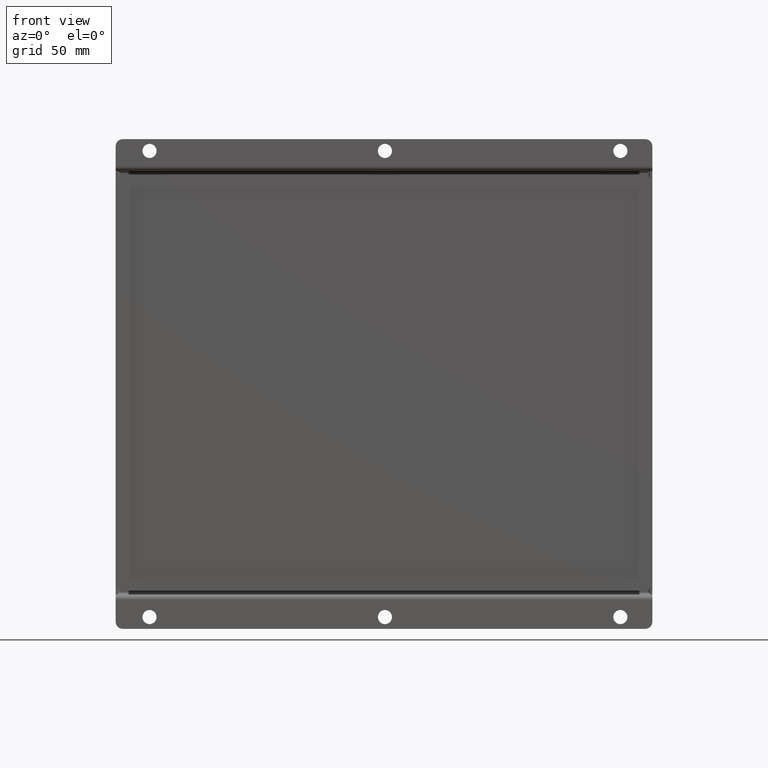
[diagram: clean part render]
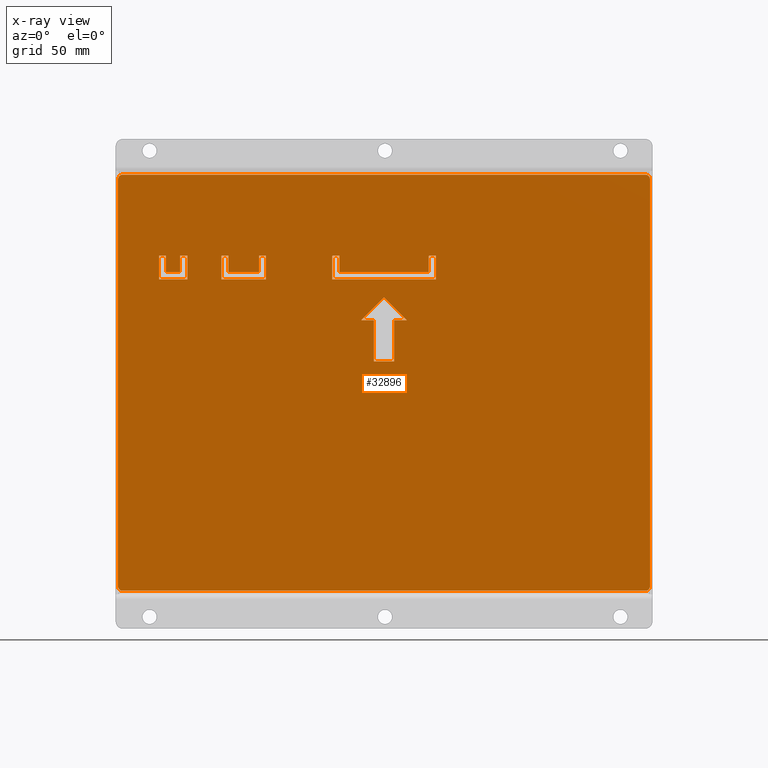
[diagram: x-ray — body ghosted, one internal face saturated and labeled with its STEP entity id]
A machine part, front view, then the same camera in x-ray: the body is ghosted and one INTERNAL B-rep face — a face not visible from any outside direction — is saturated and labeled: STEP entity #32896.
In plain terms, the highlighted planar face has unit normal (-0, -1, -0).
Its self-contained STEP definition (entity closure, byte-faithful):
#2447=FACE_BOUND('',#4604,.T.);
#2448=FACE_BOUND('',#4605,.T.);
#2449=FACE_BOUND('',#4606,.T.);
#2450=FACE_BOUND('',#4607,.T.);
#2742=FACE_OUTER_BOUND('',#4603,.T.);
#4603=EDGE_LOOP('',(#22299,#22300,#22301,#22302,#22303,#22304,#22305,#22306));
#4604=EDGE_LOOP('',(#22307,#22308,#22309,#22310,#22311,#22312,#22313,#22314));
#4605=EDGE_LOOP('',(#22315,#22316,#22317,#22318,#22319,#22320,#22321,#22322));
#4606=EDGE_LOOP('',(#22323,#22324,#22325,#22326,#22327,#22328,#22329,#22330));
#4607=EDGE_LOOP('',(#22331,#22332,#22333,#22334,#22335,#22336,#22337));
#6759=LINE('',#47406,#9980);
#6760=LINE('',#47410,#9981);
#6761=LINE('',#47414,#9982);
#6762=LINE('',#47417,#9983);
#6763=LINE('',#47420,#9984);
#6764=LINE('',#47422,#9985);
#6765=LINE('',#47424,#9986);
#6766=LINE('',#47426,#9987);
#6767=LINE('',#47428,#9988);
#6768=LINE('',#47430,#9989);
#6769=LINE('',#47432,#9990);
#6770=LINE('',#47433,#9991);
#6771=LINE('',#47436,#9992);
#6772=LINE('',#47438,#9993);
#6773=LINE('',#47440,#9994);
#6774=LINE('',#47442,#9995);
#6775=LINE('',#47444,#9996);
#6776=LINE('',#47446,#9997);
#6777=LINE('',#47448,#9998);
#6778=LINE('',#47449,#9999);
#6779=LINE('',#47452,#10000);
#6780=LINE('',#47454,#10001);
#6781=LINE('',#47456,#10002);
#6782=LINE('',#47458,#10003);
#6783=LINE('',#47460,#10004);
#6784=LINE('',#47462,#10005);
#6785=LINE('',#47464,#10006);
#6786=LINE('',#47465,#10007);
#6787=LINE('',#47468,#10008);
#6788=LINE('',#47470,#10009);
#6789=LINE('',#47472,#10010);
#6790=LINE('',#47474,#10011);
#6791=LINE('',#47476,#10012);
#6792=LINE('',#47478,#10013);
#6793=LINE('',#47479,#10014);
#9980=VECTOR('',#38208,10.);
#9981=VECTOR('',#38211,10.);
#9982=VECTOR('',#38214,10.);
#9983=VECTOR('',#38217,10.);
#9984=VECTOR('',#38218,10.);
#9985=VECTOR('',#38219,10.);
#9986=VECTOR('',#38220,10.);
#9987=VECTOR('',#38221,10.);
#9988=VECTOR('',#38222,10.);
#9989=VECTOR('',#38223,10.);
#9990=VECTOR('',#38224,10.);
#9991=VECTOR('',#38225,10.);
#9992=VECTOR('',#38226,10.);
#9993=VECTOR('',#38227,10.);
#9994=VECTOR('',#38228,10.);
#9995=VECTOR('',#38229,10.);
#9996=VECTOR('',#38230,10.);
#9997=VECTOR('',#38231,10.);
#9998=VECTOR('',#38232,10.);
#9999=VECTOR('',#38233,10.);
#10000=VECTOR('',#38234,10.);
#10001=VECTOR('',#38235,10.);
#10002=VECTOR('',#38236,10.);
#10003=VECTOR('',#38237,10.);
#10004=VECTOR('',#38238,10.);
#10005=VECTOR('',#38239,10.);
#10006=VECTOR('',#38240,10.);
#10007=VECTOR('',#38241,10.);
#10008=VECTOR('',#38242,10.);
#10009=VECTOR('',#38243,10.);
#10010=VECTOR('',#38244,10.);
#10011=VECTOR('',#38245,10.);
#10012=VECTOR('',#38246,10.);
#10013=VECTOR('',#38247,10.);
#10014=VECTOR('',#38248,10.);
#13201=CIRCLE('',#35214,2.);
#13202=CIRCLE('',#35215,2.);
#13203=CIRCLE('',#35216,2.);
#13204=CIRCLE('',#35217,2.);
#14425=VERTEX_POINT('',#47402);
#14426=VERTEX_POINT('',#47403);
#14427=VERTEX_POINT('',#47405);
#14428=VERTEX_POINT('',#47407);
#14429=VERTEX_POINT('',#47409);
#14430=VERTEX_POINT('',#47411);
#14431=VERTEX_POINT('',#47413);
#14432=VERTEX_POINT('',#47415);
#14433=VERTEX_POINT('',#47418);
#14434=VERTEX_POINT('',#47419);
#14435=VERTEX_POINT('',#47421);
#14436=VERTEX_POINT('',#47423);
#14437=VERTEX_POINT('',#47425);
#14438=VERTEX_POINT('',#47427);
#14439=VERTEX_POINT('',#47429);
#14440=VERTEX_POINT('',#47431);
#14441=VERTEX_POINT('',#47434);
#14442=VERTEX_POINT('',#47435);
#14443=VERTEX_POINT('',#47437);
#14444=VERTEX_POINT('',#47439);
#14445=VERTEX_POINT('',#47441);
#14446=VERTEX_POINT('',#47443);
#14447=VERTEX_POINT('',#47445);
#14448=VERTEX_POINT('',#47447);
#14449=VERTEX_POINT('',#47450);
#14450=VERTEX_POINT('',#47451);
#14451=VERTEX_POINT('',#47453);
#14452=VERTEX_POINT('',#47455);
#14453=VERTEX_POINT('',#47457);
#14454=VERTEX_POINT('',#47459);
#14455=VERTEX_POINT('',#47461);
#14456=VERTEX_POINT('',#47463);
#14457=VERTEX_POINT('',#47466);
#14458=VERTEX_POINT('',#47467);
#14459=VERTEX_POINT('',#47469);
#14460=VERTEX_POINT('',#47471);
#14461=VERTEX_POINT('',#47473);
#14462=VERTEX_POINT('',#47475);
#14463=VERTEX_POINT('',#47477);
#17580=EDGE_CURVE('',#14425,#14426,#13201,.T.);
#17581=EDGE_CURVE('',#14425,#14427,#6759,.T.);
#17582=EDGE_CURVE('',#14428,#14427,#13202,.T.);
#17583=EDGE_CURVE('',#14428,#14429,#6760,.T.);
#17584=EDGE_CURVE('',#14430,#14429,#13203,.T.);
#17585=EDGE_CURVE('',#14430,#14431,#6761,.T.);
#17586=EDGE_CURVE('',#14432,#14431,#13204,.T.);
#17587=EDGE_CURVE('',#14432,#14426,#6762,.T.);
#17588=EDGE_CURVE('',#14433,#14434,#6763,.T.);
#17589=EDGE_CURVE('',#14434,#14435,#6764,.T.);
#17590=EDGE_CURVE('',#14435,#14436,#6765,.T.);
#17591=EDGE_CURVE('',#14436,#14437,#6766,.T.);
#17592=EDGE_CURVE('',#14437,#14438,#6767,.T.);
#17593=EDGE_CURVE('',#14438,#14439,#6768,.T.);
#17594=EDGE_CURVE('',#14439,#14440,#6769,.T.);
#17595=EDGE_CURVE('',#14440,#14433,#6770,.T.);
#17596=EDGE_CURVE('',#14441,#14442,#6771,.T.);
#17597=EDGE_CURVE('',#14442,#14443,#6772,.T.);
#17598=EDGE_CURVE('',#14443,#14444,#6773,.T.);
#17599=EDGE_CURVE('',#14444,#14445,#6774,.T.);
#17600=EDGE_CURVE('',#14445,#14446,#6775,.T.);
#17601=EDGE_CURVE('',#14446,#14447,#6776,.T.);
#17602=EDGE_CURVE('',#14447,#14448,#6777,.T.);
#17603=EDGE_CURVE('',#14448,#14441,#6778,.T.);
#17604=EDGE_CURVE('',#14449,#14450,#6779,.T.);
#17605=EDGE_CURVE('',#14450,#14451,#6780,.T.);
#17606=EDGE_CURVE('',#14451,#14452,#6781,.T.);
#17607=EDGE_CURVE('',#14452,#14453,#6782,.T.);
#17608=EDGE_CURVE('',#14453,#14454,#6783,.T.);
#17609=EDGE_CURVE('',#14454,#14455,#6784,.T.);
#17610=EDGE_CURVE('',#14455,#14456,#6785,.T.);
#17611=EDGE_CURVE('',#14456,#14449,#6786,.T.);
#17612=EDGE_CURVE('',#14457,#14458,#6787,.T.);
#17613=EDGE_CURVE('',#14459,#14457,#6788,.T.);
#17614=EDGE_CURVE('',#14460,#14459,#6789,.T.);
#17615=EDGE_CURVE('',#14461,#14460,#6790,.T.);
#17616=EDGE_CURVE('',#14462,#14461,#6791,.T.);
#17617=EDGE_CURVE('',#14463,#14462,#6792,.T.);
#17618=EDGE_CURVE('',#14458,#14463,#6793,.T.);
#22299=ORIENTED_EDGE('',*,*,#17580,.F.);
#22300=ORIENTED_EDGE('',*,*,#17581,.T.);
#22301=ORIENTED_EDGE('',*,*,#17582,.F.);
#22302=ORIENTED_EDGE('',*,*,#17583,.T.);
#22303=ORIENTED_EDGE('',*,*,#17584,.F.);
#22304=ORIENTED_EDGE('',*,*,#17585,.T.);
#22305=ORIENTED_EDGE('',*,*,#17586,.F.);
#22306=ORIENTED_EDGE('',*,*,#17587,.T.);
#22307=ORIENTED_EDGE('',*,*,#17588,.T.);
#22308=ORIENTED_EDGE('',*,*,#17589,.T.);
#22309=ORIENTED_EDGE('',*,*,#17590,.T.);
#22310=ORIENTED_EDGE('',*,*,#17591,.T.);
#22311=ORIENTED_EDGE('',*,*,#17592,.T.);
#22312=ORIENTED_EDGE('',*,*,#17593,.T.);
#22313=ORIENTED_EDGE('',*,*,#17594,.T.);
#22314=ORIENTED_EDGE('',*,*,#17595,.T.);
#22315=ORIENTED_EDGE('',*,*,#17596,.T.);
#22316=ORIENTED_EDGE('',*,*,#17597,.T.);
#22317=ORIENTED_EDGE('',*,*,#17598,.T.);
#22318=ORIENTED_EDGE('',*,*,#17599,.T.);
#22319=ORIENTED_EDGE('',*,*,#17600,.T.);
#22320=ORIENTED_EDGE('',*,*,#17601,.T.);
#22321=ORIENTED_EDGE('',*,*,#17602,.T.);
#22322=ORIENTED_EDGE('',*,*,#17603,.T.);
#22323=ORIENTED_EDGE('',*,*,#17604,.T.);
#22324=ORIENTED_EDGE('',*,*,#17605,.T.);
#22325=ORIENTED_EDGE('',*,*,#17606,.T.);
#22326=ORIENTED_EDGE('',*,*,#17607,.T.);
#22327=ORIENTED_EDGE('',*,*,#17608,.T.);
#22328=ORIENTED_EDGE('',*,*,#17609,.T.);
#22329=ORIENTED_EDGE('',*,*,#17610,.T.);
#22330=ORIENTED_EDGE('',*,*,#17611,.T.);
#22331=ORIENTED_EDGE('',*,*,#17612,.F.);
#22332=ORIENTED_EDGE('',*,*,#17613,.F.);
#22333=ORIENTED_EDGE('',*,*,#17614,.F.);
#22334=ORIENTED_EDGE('',*,*,#17615,.F.);
#22335=ORIENTED_EDGE('',*,*,#17616,.F.);
#22336=ORIENTED_EDGE('',*,*,#17617,.F.);
#22337=ORIENTED_EDGE('',*,*,#17618,.F.);
#31737=PLANE('',#35213);
#32896=ADVANCED_FACE('',(#2742,#2447,#2448,#2449,#2450),#31737,.F.);
#35213=AXIS2_PLACEMENT_3D('',#47401,#38204,#38205);
#35214=AXIS2_PLACEMENT_3D('',#47404,#38206,#38207);
#35215=AXIS2_PLACEMENT_3D('',#47408,#38209,#38210);
#35216=AXIS2_PLACEMENT_3D('',#47412,#38212,#38213);
#35217=AXIS2_PLACEMENT_3D('',#47416,#38215,#38216);
#38204=DIRECTION('center_axis',(0.,0.,1.));
#38205=DIRECTION('ref_axis',(1.,0.,0.));
#38206=DIRECTION('center_axis',(0.,0.,1.));
#38207=DIRECTION('ref_axis',(-0.707106781186548,0.707106781186548,0.));
#38208=DIRECTION('',(1.,3.14399440601814E-16,0.));
#38209=DIRECTION('center_axis',(0.,0.,1.));
#38210=DIRECTION('ref_axis',(0.707106781186548,0.707106781186548,0.));
#38211=DIRECTION('',(1.00472671911779E-16,-1.,0.));
#38212=DIRECTION('center_axis',(0.,0.,1.));
#38213=DIRECTION('ref_axis',(0.707106781186548,-0.707106781186548,0.));
#38214=DIRECTION('',(-1.,0.,0.));
#38215=DIRECTION('center_axis',(0.,0.,1.));
#38216=DIRECTION('ref_axis',(-0.707106781186548,-0.707106781186548,0.));
#38217=DIRECTION('',(2.00945343823558E-16,1.,0.));
#38218=DIRECTION('',(1.,-2.01858731750028E-16,0.));
#38219=DIRECTION('',(0.,1.,0.));
#38220=DIRECTION('',(-1.,0.,0.));
#38221=DIRECTION('',(0.,-1.,0.));
#38222=DIRECTION('',(-1.,2.3373116307898E-16,0.));
#38223=DIRECTION('',(0.,1.,0.));
#38224=DIRECTION('',(-1.,0.,0.));
#38225=DIRECTION('',(-4.44089209850063E-16,-1.,0.));
#38226=DIRECTION('',(1.,-7.40148683083438E-16,0.));
#38227=DIRECTION('',(1.77635683940025E-15,1.,0.));
#38228=DIRECTION('',(-1.,-2.96059473233376E-15,0.));
#38229=DIRECTION('',(0.,-1.,0.));
#38230=DIRECTION('',(-1.,0.,0.));
#38231=DIRECTION('',(-5.07530525542928E-15,1.,0.));
#38232=DIRECTION('',(-1.,2.96059473233373E-15,0.));
#38233=DIRECTION('',(1.77635683940025E-15,-1.,0.));
#38234=DIRECTION('',(1.,0.,0.));
#38235=DIRECTION('',(-8.88178419700125E-16,1.,0.));
#38236=DIRECTION('',(-1.,0.,0.));
#38237=DIRECTION('',(0.,-1.,0.));
#38238=DIRECTION('',(-1.,6.83214169000096E-16,0.));
#38239=DIRECTION('',(0.,1.,0.));
#38240=DIRECTION('',(-1.,0.,0.));
#38241=DIRECTION('',(-8.88178419700125E-16,-1.,0.));
#38242=DIRECTION('',(-1.,0.,0.));
#38243=DIRECTION('',(0.706210913285717,-0.708001515504136,0.));
#38244=DIRECTION('',(0.706210913285717,0.708001515504136,0.));
#38245=DIRECTION('',(-1.,8.26447520542985E-16,0.));
#38246=DIRECTION('',(-6.34830856765394E-17,1.,0.));
#38247=DIRECTION('',(-1.,1.28915669867861E-16,0.));
#38248=DIRECTION('',(-1.58707714191348E-16,-1.,0.));
#47401=CARTESIAN_POINT('Origin',(2.11681053354548E-14,-2.11681053354548E-14,
0.));
#47402=CARTESIAN_POINT('',(-111.,88.4,0.));
#47403=CARTESIAN_POINT('',(-113.,86.4,0.));
#47404=CARTESIAN_POINT('Origin',(-111.,86.4,0.));
#47405=CARTESIAN_POINT('',(111.,88.4,0.));
#47406=CARTESIAN_POINT('',(-113.,88.4,0.));
#47407=CARTESIAN_POINT('',(113.,86.4000000000001,0.));
#47408=CARTESIAN_POINT('Origin',(111.,86.4000000000001,0.));
#47409=CARTESIAN_POINT('',(113.,-86.4000000000001,0.));
#47410=CARTESIAN_POINT('',(113.,88.4,0.));
#47411=CARTESIAN_POINT('',(111.,-88.4,0.));
#47412=CARTESIAN_POINT('Origin',(111.,-86.4000000000001,0.));
#47413=CARTESIAN_POINT('',(-111.,-88.4,0.));
#47414=CARTESIAN_POINT('',(113.,-88.4,0.));
#47415=CARTESIAN_POINT('',(-113.,-86.4000000000001,0.));
#47416=CARTESIAN_POINT('Origin',(-111.,-86.4000000000001,0.));
#47417=CARTESIAN_POINT('',(-113.,-88.4,0.));
#47418=CARTESIAN_POINT('',(-22.,43.8999999999999,0.));
#47419=CARTESIAN_POINT('',(22.,43.8999999999999,0.));
#47420=CARTESIAN_POINT('',(-11.,43.8999999999999,0.));
#47421=CARTESIAN_POINT('',(22.,53.8999999999999,0.));
#47422=CARTESIAN_POINT('',(22.,21.95,0.));
#47423=CARTESIAN_POINT('',(19.,53.8999999999999,0.));
#47424=CARTESIAN_POINT('',(11.,53.8999999999999,0.));
#47425=CARTESIAN_POINT('',(19.,46.8999999999999,0.));
#47426=CARTESIAN_POINT('',(19.,26.95,0.));
#47427=CARTESIAN_POINT('',(-19.,46.8999999999999,0.));
#47428=CARTESIAN_POINT('',(9.50000000000002,46.8999999999999,0.));
#47429=CARTESIAN_POINT('',(-19.,53.8999999999999,0.));
#47430=CARTESIAN_POINT('',(-19.,23.45,0.));
#47431=CARTESIAN_POINT('',(-22.,53.8999999999999,0.));
#47432=CARTESIAN_POINT('',(-9.49999999999999,53.8999999999999,0.));
#47433=CARTESIAN_POINT('',(-22.,26.95,0.));
#47434=CARTESIAN_POINT('',(-95.6,43.9,0.));
#47435=CARTESIAN_POINT('',(-83.6,43.9,0.));
#47436=CARTESIAN_POINT('',(-47.8,43.9,0.));
#47437=CARTESIAN_POINT('',(-83.6,53.9,0.));
#47438=CARTESIAN_POINT('',(-83.6,21.9500000000001,0.));
#47439=CARTESIAN_POINT('',(-86.6,53.9,0.));
#47440=CARTESIAN_POINT('',(-41.8000000000001,53.9000000000001,0.));
#47441=CARTESIAN_POINT('',(-86.6,46.9,0.));
#47442=CARTESIAN_POINT('',(-86.6,26.95,0.));
#47443=CARTESIAN_POINT('',(-92.5999999999999,46.9,0.));
#47444=CARTESIAN_POINT('',(-43.3,46.9,0.));
#47445=CARTESIAN_POINT('',(-92.6,53.9,0.));
#47446=CARTESIAN_POINT('',(-92.5999999999998,23.4499999999998,0.));
#47447=CARTESIAN_POINT('',(-95.6,53.9,0.));
#47448=CARTESIAN_POINT('',(-46.2999999999999,53.8999999999999,0.));
#47449=CARTESIAN_POINT('',(-95.6,26.9499999999999,0.));
#47450=CARTESIAN_POINT('',(-69.1,43.9,0.));
#47451=CARTESIAN_POINT('',(-50.1,43.9,0.));
#47452=CARTESIAN_POINT('',(-34.55,43.9,0.));
#47453=CARTESIAN_POINT('',(-50.1,53.9,0.));
#47454=CARTESIAN_POINT('',(-50.1,21.95,0.));
#47455=CARTESIAN_POINT('',(-53.1,53.9,0.));
#47456=CARTESIAN_POINT('',(-25.05,53.9,0.));
#47457=CARTESIAN_POINT('',(-53.1,46.9,0.));
#47458=CARTESIAN_POINT('',(-53.1,26.95,0.));
#47459=CARTESIAN_POINT('',(-66.1,46.9,0.));
#47460=CARTESIAN_POINT('',(-26.55,46.8999999999999,0.));
#47461=CARTESIAN_POINT('',(-66.1,53.9,0.));
#47462=CARTESIAN_POINT('',(-66.1,23.45,0.));
#47463=CARTESIAN_POINT('',(-69.1,53.9,0.));
#47464=CARTESIAN_POINT('',(-33.05,53.9,0.));
#47465=CARTESIAN_POINT('',(-69.1,26.95,0.));
#47466=CARTESIAN_POINT('',(9.67947632764491,26.5877160358558,0.));
#47467=CARTESIAN_POINT('',(4.30600494789788,26.5877160358558,0.));
#47468=CARTESIAN_POINT('',(4.83973816382247,26.5877160358558,0.));
#47469=CARTESIAN_POINT('',(0.,36.2917347366917,0.));
#47470=CARTESIAN_POINT('',(9.07290459402211,27.1958257359294,-6.93889390390723E-17));
#47471=CARTESIAN_POINT('',(-9.67947632764491,26.5877160358558,0.));
#47472=CARTESIAN_POINT('',(-13.9126427578446,22.3438163855115,0.));
#47473=CARTESIAN_POINT('',(-4.30600494789788,26.5877160358558,0.));
#47474=CARTESIAN_POINT('',(-2.15300247394892,26.5877160358558,0.));
#47475=CARTESIAN_POINT('',(-4.30600494789788,9.09923051576005,0.));
#47476=CARTESIAN_POINT('',(-4.30600494789788,4.54961525788002,0.));
#47477=CARTESIAN_POINT('',(4.30600494789788,9.09923051576005,0.));
#47478=CARTESIAN_POINT('',(2.15300247394895,9.09923051576005,0.));
#47479=CARTESIAN_POINT('',(4.30600494789788,13.2938580179279,0.));